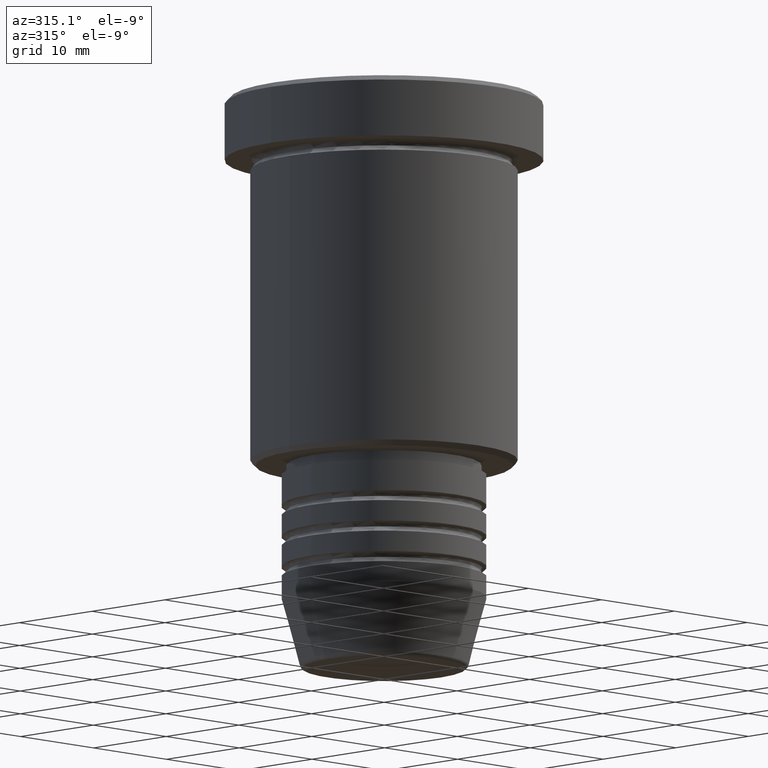
[diagram: clean part render]
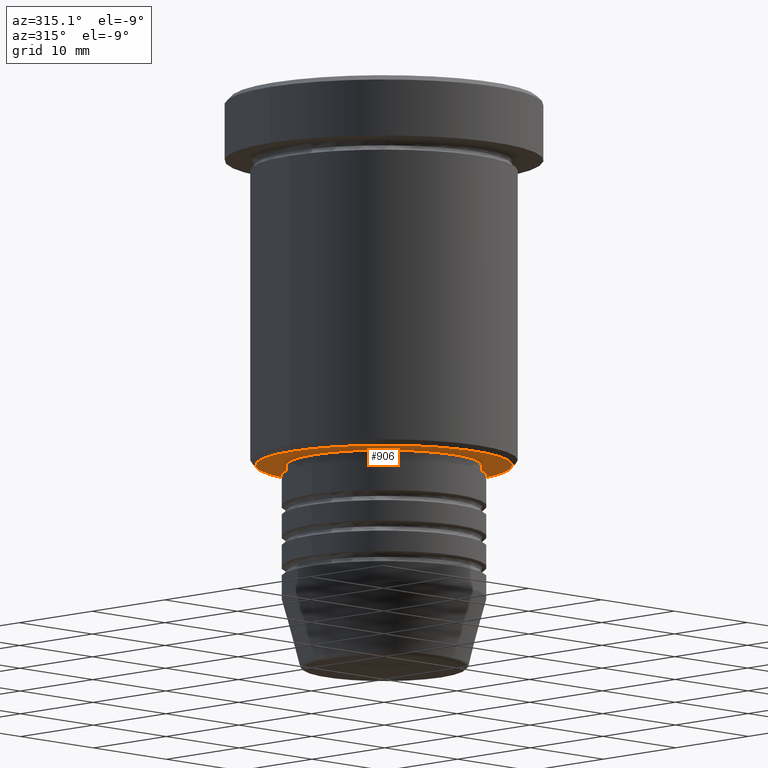
[diagram: same view with one face highlighted and labeled with its STEP entity id]
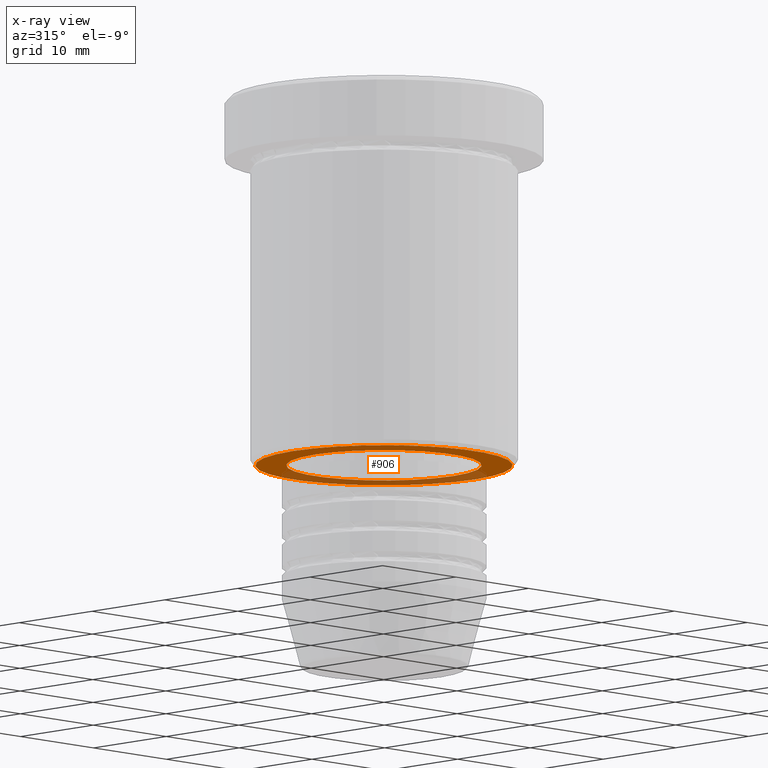
[diagram: x-ray of the same camera — body ghosted, the highlighted face saturated]
A machine part, auxiliary view. The second image highlights one B-rep face of the part: STEP entity #906.
The next image is the same camera in x-ray: the body ghosted, the highlighted face saturated — about 34% of this face is hidden behind the body in this view.
In plain terms, the highlighted planar face has unit normal (0, 0, -1).
Its self-contained STEP definition (entity closure, byte-faithful):
#7 = CIRCLE ( 'NONE', #188, 9.500000000000000000 ) ;
#9 = CARTESIAN_POINT ( 'NONE',  ( 0.000000000000000000, 13.00000000000000000, -36.00000000000000000 ) ) ;
#38 = EDGE_CURVE ( 'NONE', #228, #1114, #1182, .T. ) ;
#39 = EDGE_LOOP ( 'NONE', ( #47, #1150 ) ) ;
#47 = ORIENTED_EDGE ( 'NONE', *, *, #493, .T. ) ;
#93 = DIRECTION ( 'NONE',  ( 0.000000000000000000, 0.000000000000000000, -1.000000000000000000 ) ) ;
#111 = CARTESIAN_POINT ( 'NONE',  ( 12.49999999999998401, 0.000000000000000000, -36.00000000000000000 ) ) ;
#136 = AXIS2_PLACEMENT_3D ( 'NONE', #9, #259, #1172 ) ;
#155 = CARTESIAN_POINT ( 'NONE',  ( 9.500000000000000000, 0.000000000000000000, -36.00000000000000000 ) ) ;
#168 = CARTESIAN_POINT ( 'NONE',  ( 0.000000000000000000, 0.000000000000000000, -36.00000000000000000 ) ) ;
#180 = DIRECTION ( 'NONE',  ( 1.000000000000000000, 0.000000000000000000, 0.000000000000000000 ) ) ;
#188 = AXIS2_PLACEMENT_3D ( 'NONE', #867, #384, #903 ) ;
#189 = CARTESIAN_POINT ( 'NONE',  ( -12.49999999999998401, 1.561424668912874125E-15, -36.00000000000000000 ) ) ;
#228 = VERTEX_POINT ( 'NONE', #189 ) ;
#231 = AXIS2_PLACEMENT_3D ( 'NONE', #168, #718, #180 ) ;
#259 = DIRECTION ( 'NONE',  ( 0.000000000000000000, 0.000000000000000000, -1.000000000000000000 ) ) ;
#384 = DIRECTION ( 'NONE',  ( -0.000000000000000000, -0.000000000000000000, 1.000000000000000000 ) ) ;
#402 = CIRCLE ( 'NONE', #766, 12.49999999999998401 ) ;
#493 = EDGE_CURVE ( 'NONE', #1114, #228, #402, .T. ) ;
#519 = CARTESIAN_POINT ( 'NONE',  ( -9.500000000000000000, 1.163414459189985485E-15, -36.00000000000000000 ) ) ;
#535 = DIRECTION ( 'NONE',  ( -1.000000000000000000, 0.000000000000000000, 0.000000000000000000 ) ) ;
#714 = CARTESIAN_POINT ( 'NONE',  ( 0.000000000000000000, 0.000000000000000000, -36.00000000000000000 ) ) ;
#717 = VERTEX_POINT ( 'NONE', #155 ) ;
#718 = DIRECTION ( 'NONE',  ( -0.000000000000000000, -0.000000000000000000, 1.000000000000000000 ) ) ;
#755 = ORIENTED_EDGE ( 'NONE', *, *, #891, .T. ) ;
#766 = AXIS2_PLACEMENT_3D ( 'NONE', #1074, #93, #1112 ) ;
#818 = FACE_OUTER_BOUND ( 'NONE', #39, .T. ) ;
#867 = CARTESIAN_POINT ( 'NONE',  ( 0.000000000000000000, 0.000000000000000000, -36.00000000000000000 ) ) ;
#891 = EDGE_CURVE ( 'NONE', #717, #1049, #7, .T. ) ;
#903 = DIRECTION ( 'NONE',  ( 1.000000000000000000, 0.000000000000000000, 0.000000000000000000 ) ) ;
#906 = ADVANCED_FACE ( 'NONE', ( #818, #914 ), #1116, .T. ) ;
#914 = FACE_BOUND ( 'NONE', #1091, .T. ) ;
#937 = ORIENTED_EDGE ( 'NONE', *, *, #1153, .T. ) ;
#959 = AXIS2_PLACEMENT_3D ( 'NONE', #714, #972, #535 ) ;
#972 = DIRECTION ( 'NONE',  ( 0.000000000000000000, 0.000000000000000000, -1.000000000000000000 ) ) ;
#1049 = VERTEX_POINT ( 'NONE', #519 ) ;
#1069 = CIRCLE ( 'NONE', #231, 9.500000000000000000 ) ;
#1074 = CARTESIAN_POINT ( 'NONE',  ( 0.000000000000000000, 0.000000000000000000, -36.00000000000000000 ) ) ;
#1091 = EDGE_LOOP ( 'NONE', ( #755, #937 ) ) ;
#1112 = DIRECTION ( 'NONE',  ( -1.000000000000000000, 0.000000000000000000, 0.000000000000000000 ) ) ;
#1114 = VERTEX_POINT ( 'NONE', #111 ) ;
#1116 = PLANE ( 'NONE',  #136 ) ;
#1150 = ORIENTED_EDGE ( 'NONE', *, *, #38, .T. ) ;
#1153 = EDGE_CURVE ( 'NONE', #1049, #717, #1069, .T. ) ;
#1172 = DIRECTION ( 'NONE',  ( -1.000000000000000000, 0.000000000000000000, -0.000000000000000000 ) ) ;
#1182 = CIRCLE ( 'NONE', #959, 12.49999999999998401 ) ;